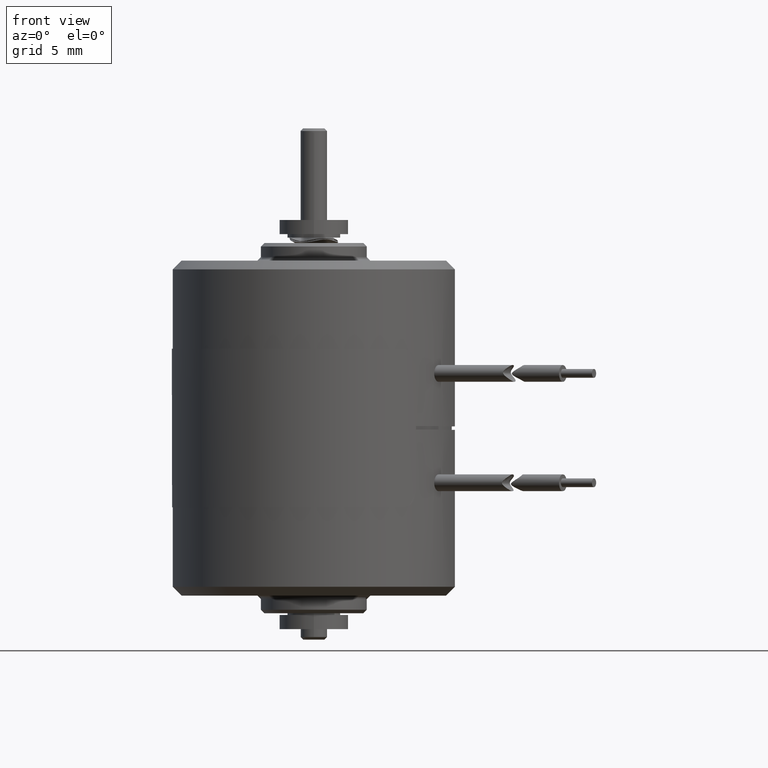
[diagram: clean part render]
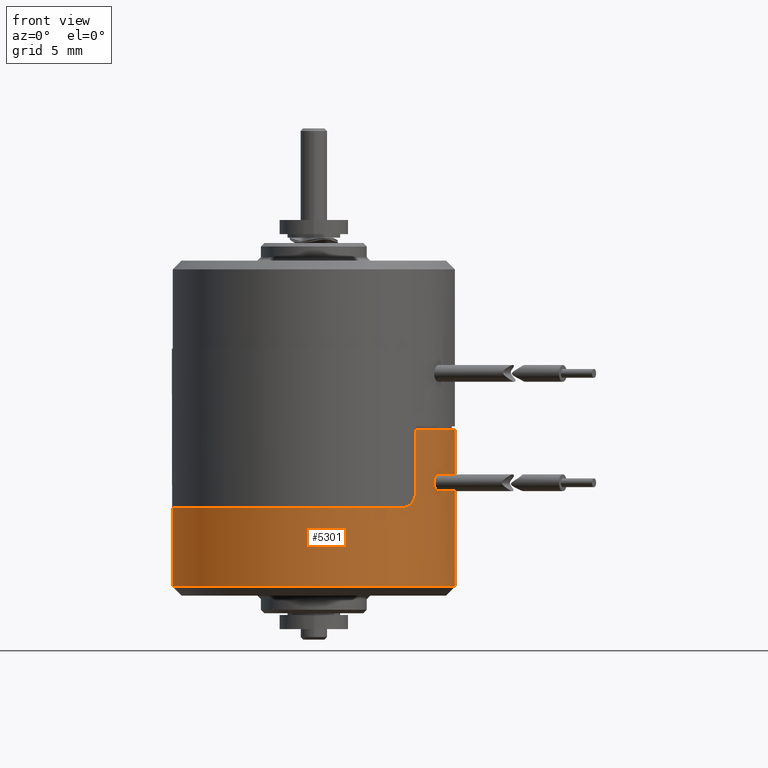
[diagram: same view with one face highlighted and labeled with its STEP entity id]
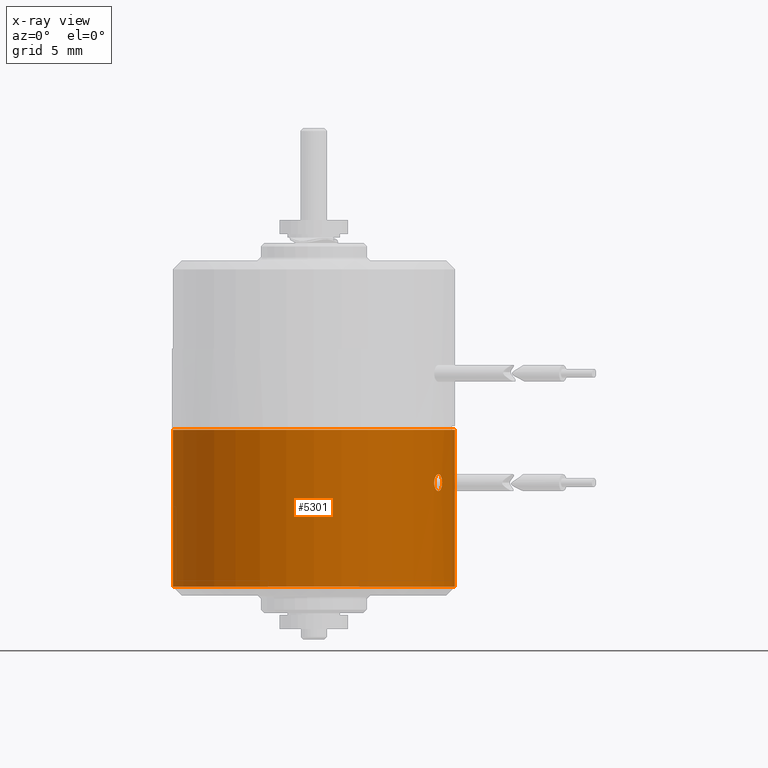
[diagram: x-ray of the same camera — body ghosted, the highlighted face saturated]
A machine part, front view. The second image highlights one B-rep face of the part: STEP entity #5301.
The next image is the same camera in x-ray: the body ghosted, the highlighted face saturated — about 0% of this face is hidden behind the body in this view.
In plain terms, the highlighted cylindrical surface (partial cylindrical patch) has radius 8 mm, axis along (0, 0, -1).
Its self-contained STEP definition (entity closure, byte-faithful):
#4885=CARTESIAN_POINT('',(0.E0,0.E0,-5.2E0));
#4886=DIRECTION('',(0.E0,0.E0,1.E0));
#4887=DIRECTION('',(0.E0,1.E0,0.E0));
#4888=AXIS2_PLACEMENT_3D('',#4885,#4886,#4887);
#4890=DIRECTION('',(0.E0,0.E0,-1.E0));
#4891=VECTOR('',#4890,8.9E0);
#4892=CARTESIAN_POINT('',(0.E0,8.E0,3.7E0));
#4893=LINE('',#4892,#4891);
#4924=DIRECTION('',(0.E0,0.E0,-1.E0));
#4925=VECTOR('',#4924,8.9E0);
#4926=CARTESIAN_POINT('',(0.E0,-8.E0,3.7E0));
#4927=LINE('',#4926,#4925);
#4928=CARTESIAN_POINT('',(-3.755772502287E0,7.063580742871E0,-1.725E0));
#4929=CARTESIAN_POINT('',(-3.714586523514E0,7.085479716237E0,-1.725E0));
#4930=CARTESIAN_POINT('',(-3.635635455201E0,7.126557740311E0,
-1.738169658378E0));
#4931=CARTESIAN_POINT('',(-3.523430144313E0,7.182613140635E0,
-1.795295553944E0));
#4932=CARTESIAN_POINT('',(-3.430682382465E0,7.227241742174E0,
-1.884822456920E0));
#4933=CARTESIAN_POINT('',(-3.363597640728E0,7.258597553752E0,
-1.999706676598E0));
#4934=CARTESIAN_POINT('',(-3.328542600068E0,7.274671820021E0,
-2.130351577636E0));
#4935=CARTESIAN_POINT('',(-3.328091151049E0,7.274877592383E0,
-2.266285134848E0));
#4936=CARTESIAN_POINT('',(-3.362379877270E0,7.259159487813E0,
-2.397308207005E0));
#4937=CARTESIAN_POINT('',(-3.428578882022E0,7.228235307590E0,
-2.512452758441E0));
#4938=CARTESIAN_POINT('',(-3.521252373863E0,7.183689521245E0,
-2.603393678167E0));
#4939=CARTESIAN_POINT('',(-3.635636070694E0,7.126568049165E0,
-2.662007455096E0));
#4940=CARTESIAN_POINT('',(-3.714654197830E0,7.085443733165E0,-2.675E0));
#4941=CARTESIAN_POINT('',(-3.755772502287E0,7.063580742871E0,-2.675E0));
#4943=CARTESIAN_POINT('',(-3.755772502287E0,7.063580742871E0,-2.675E0));
#4944=CARTESIAN_POINT('',(-3.796917456096E0,7.041703582866E0,-2.675E0));
#4945=CARTESIAN_POINT('',(-3.875123828881E0,6.999230227694E0,
-2.661983383872E0));
#4946=CARTESIAN_POINT('',(-3.986103884512E0,6.936534417537E0,
-2.603575957731E0));
#4947=CARTESIAN_POINT('',(-4.073874169188E0,6.885207279449E0,
-2.514141415491E0));
#4948=CARTESIAN_POINT('',(-4.137363573863E0,6.847135137575E0,
-2.398865625677E0));
#4949=CARTESIAN_POINT('',(-4.169847417661E0,6.827327942901E0,
-2.268142251509E0));
#4950=CARTESIAN_POINT('',(-4.169917018639E0,6.827285341078E0,
-2.132189807374E0));
#4951=CARTESIAN_POINT('',(-4.137371635616E0,6.847130725738E0,
-2.001097583733E0));
#4952=CARTESIAN_POINT('',(-4.073786388584E0,6.885259042825E0,
-1.885756359992E0));
#4953=CARTESIAN_POINT('',(-3.986247187131E0,6.936449813783E0,
-1.796583323763E0));
#4954=CARTESIAN_POINT('',(-3.875524919995E0,6.999008057754E0,
-1.738144875307E0));
#4955=CARTESIAN_POINT('',(-3.797096160284E0,7.041608564163E0,-1.725E0));
#4956=CARTESIAN_POINT('',(-3.755772502287E0,7.063580742871E0,-1.725E0));
#4962=CARTESIAN_POINT('',(0.E0,0.E0,3.7E0));
#4963=DIRECTION('',(0.E0,0.E0,-1.E0));
#4964=DIRECTION('',(0.E0,-1.E0,0.E0));
#4965=AXIS2_PLACEMENT_3D('',#4962,#4963,#4964);
#5194=CARTESIAN_POINT('',(0.E0,-8.E0,-5.2E0));
#5195=CARTESIAN_POINT('',(0.E0,8.E0,-5.2E0));
#5196=VERTEX_POINT('',#5194);
#5197=VERTEX_POINT('',#5195);
#5198=CARTESIAN_POINT('',(0.E0,8.E0,3.7E0));
#5199=VERTEX_POINT('',#5198);
#5200=CARTESIAN_POINT('',(0.E0,-8.E0,3.7E0));
#5201=VERTEX_POINT('',#5200);
#5204=VERTEX_POINT('',#4928);
#5205=VERTEX_POINT('',#4941);
#5283=CARTESIAN_POINT('',(0.E0,0.E0,-5.72E0));
#5284=DIRECTION('',(0.E0,0.E0,1.E0));
#5285=DIRECTION('',(0.E0,1.E0,0.E0));
#5286=AXIS2_PLACEMENT_3D('',#5283,#5284,#5285);
#5287=CYLINDRICAL_SURFACE('',#5286,8.E0);
#5288=ORIENTED_EDGE('',*,*,#5267,.F.);
#5290=ORIENTED_EDGE('',*,*,#5289,.F.);
#5291=ORIENTED_EDGE('',*,*,#5270,.T.);
#5292=ORIENTED_EDGE('',*,*,#5257,.F.);
#5293=EDGE_LOOP('',(#5288,#5290,#5291,#5292));
#5294=FACE_OUTER_BOUND('',#5293,.F.);
#5296=ORIENTED_EDGE('',*,*,#5295,.T.);
#5298=ORIENTED_EDGE('',*,*,#5297,.T.);
#5299=EDGE_LOOP('',(#5296,#5298));
#5300=FACE_BOUND('',#5299,.F.);
#5301=ADVANCED_FACE('',(#5294,#5300),#5287,.T.);
#4889=CIRCLE('',#4888,8.E0);
#4942=B_SPLINE_CURVE_WITH_KNOTS('',3,(#4928,#4929,#4930,#4931,#4932,#4933,#4934,
#4935,#4936,#4937,#4938,#4939,#4940,#4941),.UNSPECIFIED.,.F.,.F.,(4,1,1,1,1,1,1,
1,1,1,1,4),(0.E0,9.090909090909E-2,1.818181818182E-1,2.727272727273E-1,
3.636363636364E-1,4.545454545455E-1,5.454545454545E-1,6.363636363636E-1,
7.272727272727E-1,8.181818181818E-1,9.090909090909E-1,1.E0),.UNSPECIFIED.);
#4957=B_SPLINE_CURVE_WITH_KNOTS('',3,(#4943,#4944,#4945,#4946,#4947,#4948,#4949,
#4950,#4951,#4952,#4953,#4954,#4955,#4956),.UNSPECIFIED.,.F.,.F.,(4,1,1,1,1,1,1,
1,1,1,1,4),(0.E0,9.090909090909E-2,1.818181818182E-1,2.727272727273E-1,
3.636363636364E-1,4.545454545455E-1,5.454545454545E-1,6.363636363636E-1,
7.272727272727E-1,8.181818181818E-1,9.090909090909E-1,1.E0),.UNSPECIFIED.);
#4966=CIRCLE('',#4965,8.E0);
#5257=EDGE_CURVE('',#5197,#5196,#4889,.T.);
#5267=EDGE_CURVE('',#5199,#5197,#4893,.T.);
#5270=EDGE_CURVE('',#5201,#5196,#4927,.T.);
#5289=EDGE_CURVE('',#5201,#5199,#4966,.T.);
#5295=EDGE_CURVE('',#5204,#5205,#4942,.T.);
#5297=EDGE_CURVE('',#5205,#5204,#4957,.T.);